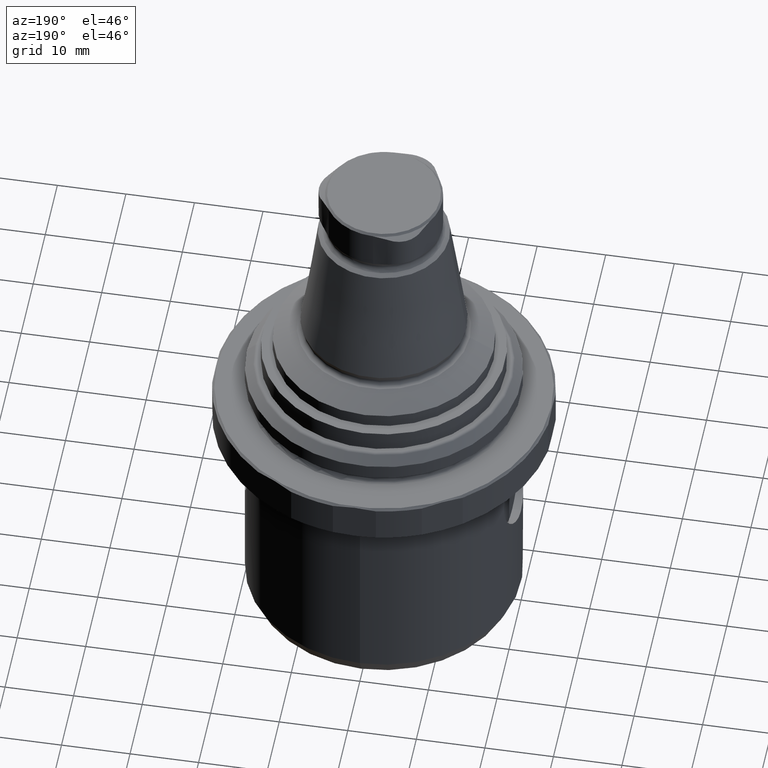
[diagram: clean part render]
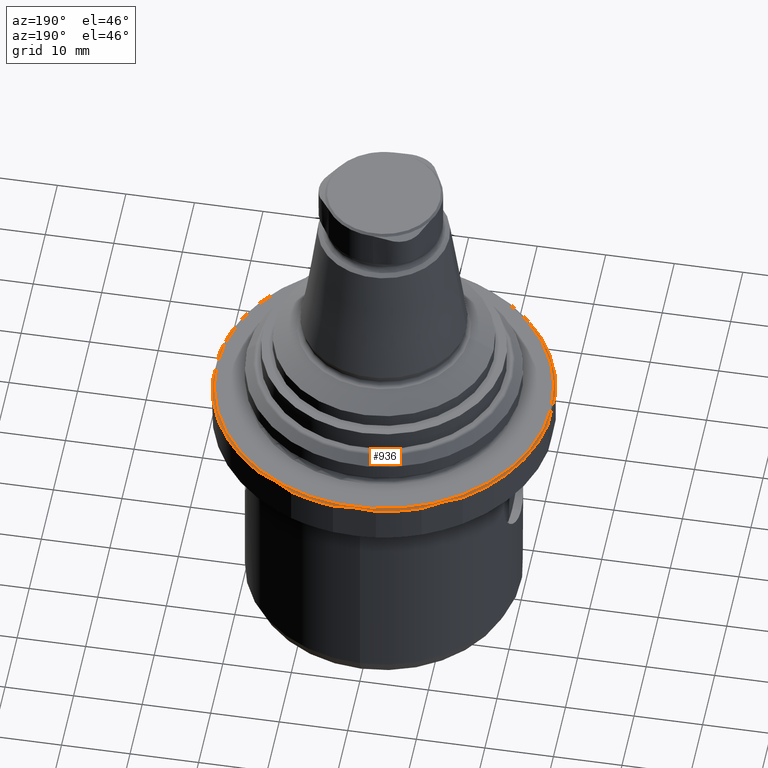
[diagram: same view with one face highlighted and labeled with its STEP entity id]
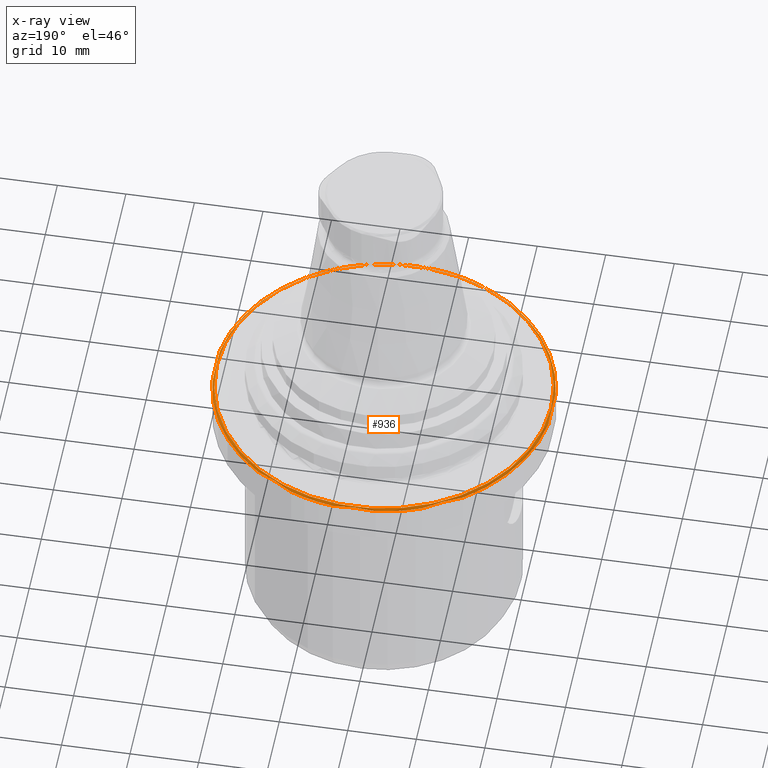
[diagram: x-ray of the same camera — body ghosted, the highlighted face saturated]
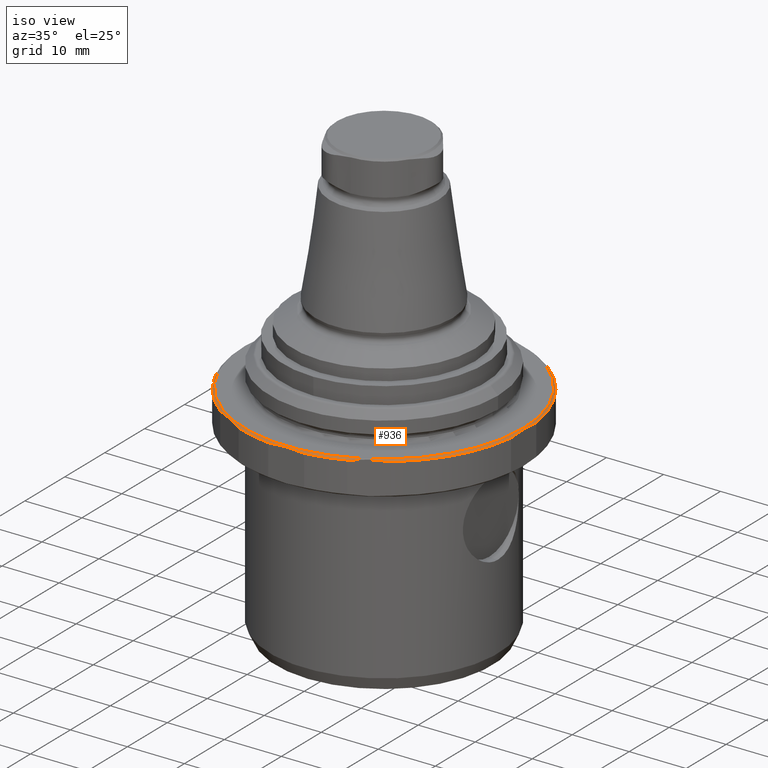
[diagram: same view with one face highlighted and labeled with its STEP entity id]
A machine part, auxiliary view. The second image highlights one B-rep face of the part: STEP entity #936.
The next image is the same camera in x-ray: the body ghosted, the highlighted face saturated — about 3% of this face is hidden behind the body in this view.
A second angle (iso view) of the same face is appended — the face is thin or edge-on in the first view.
In plain terms, the highlighted conical surface has half-angle 45 deg.
Its self-contained STEP definition (entity closure, byte-faithful):
#83=B_SPLINE_CURVE_WITH_KNOTS('',3,(#1496,#1497,#1498,#1499),
 .UNSPECIFIED.,.F.,.F.,(4,4),(0.0112071973389998,0.0174580677164328),
 .UNSPECIFIED.);
#84=B_SPLINE_CURVE_WITH_KNOTS('',3,(#1503,#1504,#1505,#1506),
 .UNSPECIFIED.,.F.,.F.,(4,4),(0.0111130187680983,0.0173638873401942),
 .UNSPECIFIED.);
#85=B_SPLINE_CURVE_WITH_KNOTS('',3,(#1510,#1511,#1512,#1513),
 .UNSPECIFIED.,.F.,.F.,(4,4),(0.0111130187680983,0.0173638873401942),
 .UNSPECIFIED.);
#86=B_SPLINE_CURVE_WITH_KNOTS('',3,(#1517,#1518,#1519,#1520),
 .UNSPECIFIED.,.F.,.F.,(4,4),(0.0111130187680983,0.0173638873401942),
 .UNSPECIFIED.);
#87=B_SPLINE_CURVE_WITH_KNOTS('',3,(#1524,#1525,#1526,#1527),
 .UNSPECIFIED.,.F.,.F.,(4,4),(0.0112071973389998,0.0174580677164328),
 .UNSPECIFIED.);
#88=B_SPLINE_CURVE_WITH_KNOTS('',3,(#1531,#1532,#1533,#1534),
 .UNSPECIFIED.,.F.,.F.,(4,4),(0.0111130187680983,0.0173638873401942),
 .UNSPECIFIED.);
#89=B_SPLINE_CURVE_WITH_KNOTS('',3,(#1538,#1539,#1540,#1541),
 .UNSPECIFIED.,.F.,.F.,(4,4),(0.0111130187680983,0.0173638873401942),
 .UNSPECIFIED.);
#90=B_SPLINE_CURVE_WITH_KNOTS('',3,(#1545,#1546,#1547,#1548),
 .UNSPECIFIED.,.F.,.F.,(4,4),(0.0111130187680983,0.0173638873401942),
 .UNSPECIFIED.);
#154=CONICAL_SURFACE('',#1029,24.3999999999999,0.785398163397897);
#189=ORIENTED_EDGE('',*,*,#438,.F.);
#190=ORIENTED_EDGE('',*,*,#439,.T.);
#191=ORIENTED_EDGE('',*,*,#440,.F.);
#192=ORIENTED_EDGE('',*,*,#441,.T.);
#193=ORIENTED_EDGE('',*,*,#442,.F.);
#194=ORIENTED_EDGE('',*,*,#443,.T.);
#195=ORIENTED_EDGE('',*,*,#444,.F.);
#196=ORIENTED_EDGE('',*,*,#445,.T.);
#197=ORIENTED_EDGE('',*,*,#446,.F.);
#198=ORIENTED_EDGE('',*,*,#447,.T.);
#199=ORIENTED_EDGE('',*,*,#448,.F.);
#200=ORIENTED_EDGE('',*,*,#449,.T.);
#201=ORIENTED_EDGE('',*,*,#450,.F.);
#202=ORIENTED_EDGE('',*,*,#451,.T.);
#203=ORIENTED_EDGE('',*,*,#452,.F.);
#204=ORIENTED_EDGE('',*,*,#453,.T.);
#205=ORIENTED_EDGE('',*,*,#437,.T.);
#437=EDGE_CURVE('',#565,#565,#657,.T.);
#438=EDGE_CURVE('',#566,#567,#658,.T.);
#439=EDGE_CURVE('',#566,#568,#83,.F.);
#440=EDGE_CURVE('',#569,#568,#659,.T.);
#441=EDGE_CURVE('',#569,#570,#84,.F.);
#442=EDGE_CURVE('',#571,#570,#660,.T.);
#443=EDGE_CURVE('',#571,#572,#85,.F.);
#444=EDGE_CURVE('',#573,#572,#661,.T.);
#445=EDGE_CURVE('',#573,#574,#86,.F.);
#446=EDGE_CURVE('',#575,#574,#662,.T.);
#447=EDGE_CURVE('',#575,#576,#87,.T.);
#448=EDGE_CURVE('',#577,#576,#663,.T.);
#449=EDGE_CURVE('',#577,#578,#88,.F.);
#450=EDGE_CURVE('',#579,#578,#664,.T.);
#451=EDGE_CURVE('',#579,#580,#89,.F.);
#452=EDGE_CURVE('',#581,#580,#665,.T.);
#453=EDGE_CURVE('',#581,#567,#90,.F.);
#565=VERTEX_POINT('',#1491);
#566=VERTEX_POINT('',#1494);
#567=VERTEX_POINT('',#1495);
#568=VERTEX_POINT('',#1500);
#569=VERTEX_POINT('',#1502);
#570=VERTEX_POINT('',#1507);
#571=VERTEX_POINT('',#1509);
#572=VERTEX_POINT('',#1514);
#573=VERTEX_POINT('',#1516);
#574=VERTEX_POINT('',#1521);
#575=VERTEX_POINT('',#1523);
#576=VERTEX_POINT('',#1528);
#577=VERTEX_POINT('',#1530);
#578=VERTEX_POINT('',#1535);
#579=VERTEX_POINT('',#1537);
#580=VERTEX_POINT('',#1542);
#581=VERTEX_POINT('',#1544);
#657=CIRCLE('',#1028,24.3999999999999);
#658=CIRCLE('',#1030,24.7);
#659=CIRCLE('',#1031,24.7);
#660=CIRCLE('',#1032,24.7);
#661=CIRCLE('',#1033,24.7);
#662=CIRCLE('',#1034,24.7);
#663=CIRCLE('',#1035,24.7);
#664=CIRCLE('',#1036,24.7);
#665=CIRCLE('',#1037,24.7);
#725=EDGE_LOOP('',(#189,#190,#191,#192,#193,#194,#195,#196,#197,#198,#199,
#200,#201,#202,#203,#204));
#726=EDGE_LOOP('',(#205));
#827=FACE_BOUND('',#725,.T.);
#828=FACE_BOUND('',#726,.T.);
#936=ADVANCED_FACE('',(#827,#828),#154,.T.);
#1028=AXIS2_PLACEMENT_3D('',#1490,#1176,#1177);
#1029=AXIS2_PLACEMENT_3D('',#1492,#1178,#1179);
#1030=AXIS2_PLACEMENT_3D('',#1493,#1180,#1181);
#1031=AXIS2_PLACEMENT_3D('',#1501,#1182,#1183);
#1032=AXIS2_PLACEMENT_3D('',#1508,#1184,#1185);
#1033=AXIS2_PLACEMENT_3D('',#1515,#1186,#1187);
#1034=AXIS2_PLACEMENT_3D('',#1522,#1188,#1189);
#1035=AXIS2_PLACEMENT_3D('',#1529,#1190,#1191);
#1036=AXIS2_PLACEMENT_3D('',#1536,#1192,#1193);
#1037=AXIS2_PLACEMENT_3D('',#1543,#1194,#1195);
#1176=DIRECTION('',(1.1985897436163E-16,5.68031218956752E-33,-1.));
#1177=DIRECTION('',(1.,-2.71836589696428E-16,1.1985897436163E-16));
#1178=DIRECTION('',(1.1985897436163E-16,5.68031218956752E-33,-1.));
#1179=DIRECTION('',(1.,-2.71836589696428E-16,1.1985897436163E-16));
#1180=DIRECTION('',(1.1985897436163E-16,5.68031218956752E-33,-1.));
#1181=DIRECTION('',(1.,-2.71836589696428E-16,1.1985897436163E-16));
#1182=DIRECTION('',(1.1985897436163E-16,5.68031218956752E-33,-1.));
#1183=DIRECTION('',(1.,-2.71836589696428E-16,1.1985897436163E-16));
#1184=DIRECTION('',(1.1985897436163E-16,5.68031218956752E-33,-1.));
#1185=DIRECTION('',(1.,-2.71836589696428E-16,1.1985897436163E-16));
#1186=DIRECTION('',(1.1985897436163E-16,5.68031218956752E-33,-1.));
#1187=DIRECTION('',(1.,-2.71836589696428E-16,1.1985897436163E-16));
#1188=DIRECTION('',(1.1985897436163E-16,5.68031218956752E-33,-1.));
#1189=DIRECTION('',(1.,-2.71836589696428E-16,1.1985897436163E-16));
#1190=DIRECTION('',(1.1985897436163E-16,5.68031218956752E-33,-1.));
#1191=DIRECTION('',(1.,-2.71836589696428E-16,1.1985897436163E-16));
#1192=DIRECTION('',(1.1985897436163E-16,5.68031218956752E-33,-1.));
#1193=DIRECTION('',(1.,-2.71836589696428E-16,1.1985897436163E-16));
#1194=DIRECTION('',(1.1985897436163E-16,5.68031218956752E-33,-1.));
#1195=DIRECTION('',(1.,-2.71836589696428E-16,1.1985897436163E-16));
#1490=CARTESIAN_POINT('',(1.5564154597315E-15,2.88538962770035E-32,-10.9937822173509));
#1491=CARTESIAN_POINT('',(24.3999999999999,-6.63281278859281E-15,-10.9937822173509));
#1492=CARTESIAN_POINT('',(1.5564154597315E-15,2.88538962770035E-32,-10.9937822173509));
#1493=CARTESIAN_POINT('',(1.59237315203997E-15,3.0557989933873E-32,-11.2937822173508));
#1494=CARTESIAN_POINT('',(3.13687742827159,24.5,-11.2937822173508));
#1495=CARTESIAN_POINT('',(9.53338445855882,22.7860611068545,-11.2937822173508));
#1496=CARTESIAN_POINT('',(-3.13687742827159,24.5,-11.2937822173508));
#1497=CARTESIAN_POINT('',(-1.04673923052096,24.5,-11.0283365762784));
#1498=CARTESIAN_POINT('',(1.04451120145091,24.5,-11.0280536186226));
#1499=CARTESIAN_POINT('',(3.13687742827159,24.5,-11.2937822173508));
#1500=CARTESIAN_POINT('',(-3.13687742827159,24.5,-11.2937822173508));
#1501=CARTESIAN_POINT('',(1.59237315203997E-15,3.0557989933873E-32,-11.2937822173508));
#1502=CARTESIAN_POINT('',(-9.53338445855885,22.7860611068545,-11.2937822173508));
#1503=CARTESIAN_POINT('',(-14.9666155414412,19.649183678583,-11.2937822173508));
#1504=CARTESIAN_POINT('',(-13.1559720558378,20.6945591824025,-11.0282587499826));
#1505=CARTESIAN_POINT('',(-11.3448952358755,21.7401848719309,-11.0281315651974));
#1506=CARTESIAN_POINT('',(-9.53338445855884,22.7860611068545,-11.2937822173508));
#1507=CARTESIAN_POINT('',(-14.9666155414412,19.649183678583,-11.2937822173508));
#1508=CARTESIAN_POINT('',(1.59237315203997E-15,3.0557989933873E-32,-11.2937822173508));
#1509=CARTESIAN_POINT('',(-24.5,3.13687742827157,-11.2937822173508));
#1510=CARTESIAN_POINT('',(-24.5,-3.13687742827155,-11.2937822173508));
#1511=CARTESIAN_POINT('',(-24.5,-1.04612642063249,-11.0282587499826));
#1512=CARTESIAN_POINT('',(-24.5,1.04512495842425,-11.0281315651974));
#1513=CARTESIAN_POINT('',(-24.5,3.13687742827157,-11.2937822173508));
#1514=CARTESIAN_POINT('',(-24.5,-3.13687742827155,-11.2937822173508));
#1515=CARTESIAN_POINT('',(1.59237315203997E-15,3.0557989933873E-32,-11.2937822173508));
#1516=CARTESIAN_POINT('',(-14.9666155414412,-19.649183678583,-11.2937822173508));
#1517=CARTESIAN_POINT('',(-9.53338445855883,-22.7860611068545,-11.2937822173508));
#1518=CARTESIAN_POINT('',(-11.3440279441622,-21.740685603035,-11.0282587499826));
#1519=CARTESIAN_POINT('',(-13.1551047641245,-20.6950599135066,-11.0281315651974));
#1520=CARTESIAN_POINT('',(-14.9666155414412,-19.649183678583,-11.2937822173508));
#1521=CARTESIAN_POINT('',(-9.53338445855882,-22.7860611068545,-11.2937822173508));
#1522=CARTESIAN_POINT('',(1.59237315203997E-15,3.0557989933873E-32,-11.2937822173508));
#1523=CARTESIAN_POINT('',(-3.13687742827159,-24.5,-11.2937822173508));
#1524=CARTESIAN_POINT('',(-3.13687742827159,-24.5,-11.2937822173508));
#1525=CARTESIAN_POINT('',(-1.04673923052096,-24.5,-11.0283365762785));
#1526=CARTESIAN_POINT('',(1.04451120145091,-24.5,-11.0280536186226));
#1527=CARTESIAN_POINT('',(3.13687742827159,-24.5,-11.2937822173508));
#1528=CARTESIAN_POINT('',(3.13687742827159,-24.5,-11.2937822173508));
#1529=CARTESIAN_POINT('',(1.59237315203997E-15,3.0557989933873E-32,-11.2937822173508));
#1530=CARTESIAN_POINT('',(9.53338445855884,-22.7860611068545,-11.2937822173508));
#1531=CARTESIAN_POINT('',(14.9666155414412,-19.649183678583,-11.2937822173508));
#1532=CARTESIAN_POINT('',(13.1559720558378,-20.6945591824025,-11.0282587499826));
#1533=CARTESIAN_POINT('',(11.3448952358755,-21.7401848719309,-11.0281315651974));
#1534=CARTESIAN_POINT('',(9.53338445855884,-22.7860611068545,-11.2937822173508));
#1535=CARTESIAN_POINT('',(14.9666155414412,-19.649183678583,-11.2937822173508));
#1536=CARTESIAN_POINT('',(1.59237315203997E-15,3.0557989933873E-32,-11.2937822173508));
#1537=CARTESIAN_POINT('',(24.5,-3.13687742827156,-11.2937822173508));
#1538=CARTESIAN_POINT('',(24.5,3.13687742827155,-11.2937822173508));
#1539=CARTESIAN_POINT('',(24.5,1.04612642063249,-11.0282587499826));
#1540=CARTESIAN_POINT('',(24.5,-1.04512495842424,-11.0281315651973));
#1541=CARTESIAN_POINT('',(24.5,-3.13687742827156,-11.2937822173508));
#1542=CARTESIAN_POINT('',(24.5,3.13687742827155,-11.2937822173508));
#1543=CARTESIAN_POINT('',(1.59237315203997E-15,3.0557989933873E-32,-11.2937822173508));
#1544=CARTESIAN_POINT('',(14.9666155414412,19.649183678583,-11.2937822173508));
#1545=CARTESIAN_POINT('',(9.53338445855882,22.7860611068545,-11.2937822173508));
#1546=CARTESIAN_POINT('',(11.3440279441622,21.740685603035,-11.0282587499826));
#1547=CARTESIAN_POINT('',(13.1551047641245,20.6950599135066,-11.0281315651973));
#1548=CARTESIAN_POINT('',(14.9666155414412,19.649183678583,-11.2937822173508));